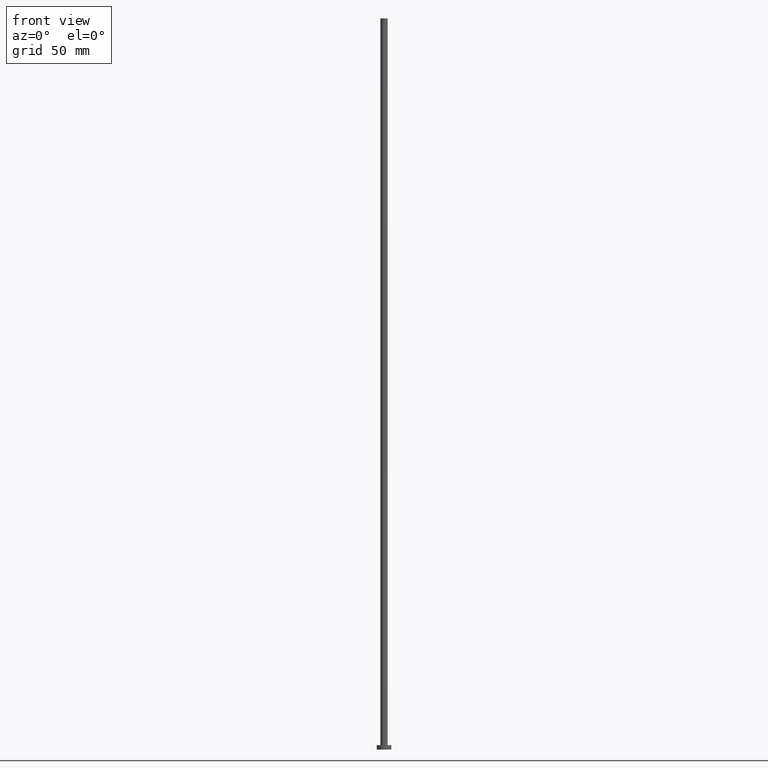
[diagram: clean part render]
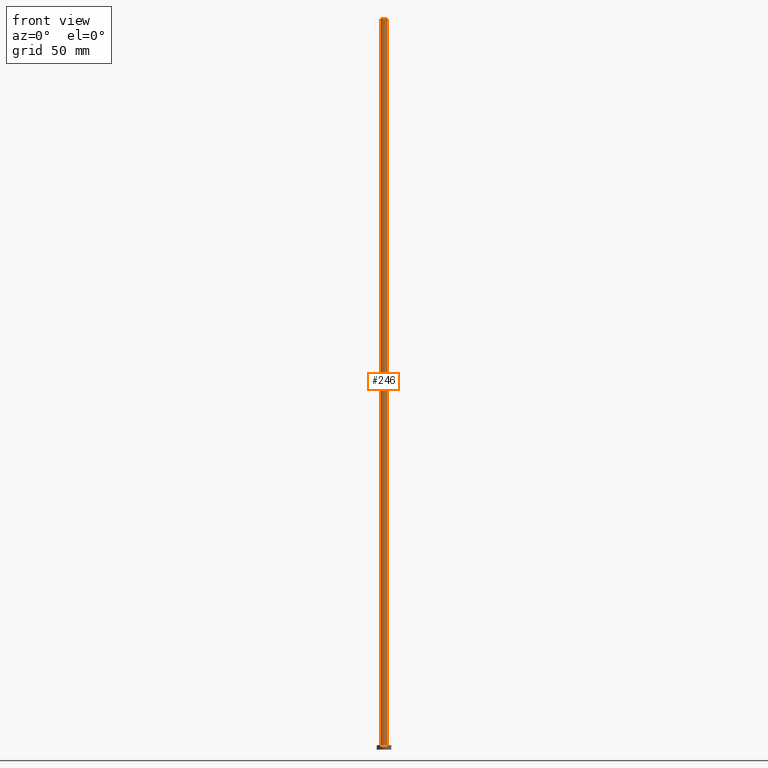
[diagram: same view with one face highlighted and labeled with its STEP entity id]
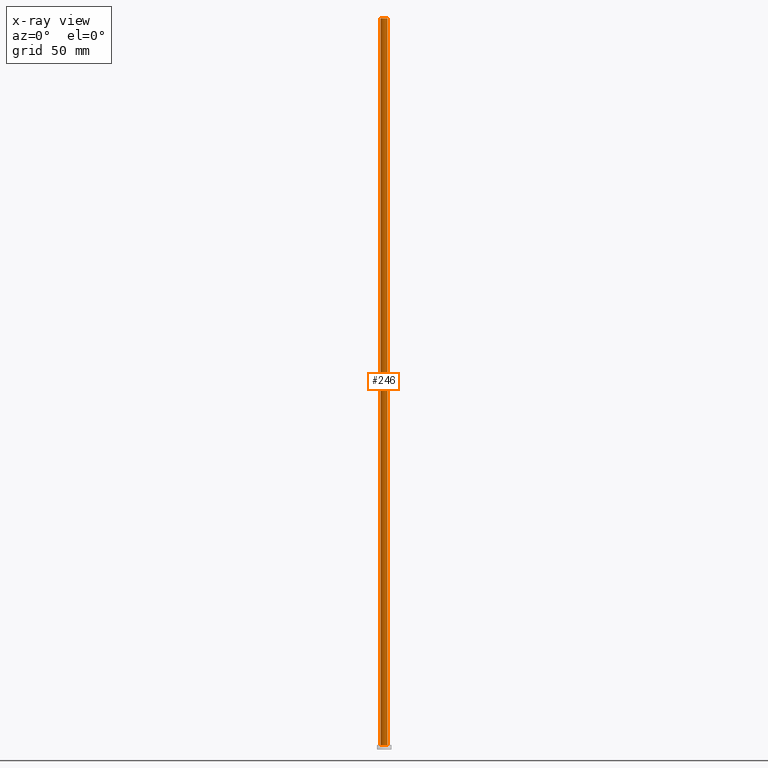
[diagram: x-ray of the same camera — body ghosted, the highlighted face saturated]
A machine part, front view. The second image highlights one B-rep face of the part: STEP entity #246.
The next image is the same camera in x-ray: the body ghosted, the highlighted face saturated — about 0% of this face is hidden behind the body in this view.
In plain terms, the highlighted cylindrical surface (edge-blend (fillet) strip) has radius 2.5 mm, axis along (-0, -0, -1).
Its self-contained STEP definition (entity closure, byte-faithful):
#3 = CARTESIAN_POINT ( 'NONE',  ( 2.500000000000000000, 3.061616997868382648E-16, 3.000000000000000000 ) ) ;
#7 = DIRECTION ( 'NONE',  ( -0.000000000000000000, -0.000000000000000000, -1.000000000000000000 ) ) ;
#11 = ORIENTED_EDGE ( 'NONE', *, *, #43, .T. ) ;
#21 = CARTESIAN_POINT ( 'NONE',  ( 0.000000000000000000, 0.000000000000000000, 3.000000000000000000 ) ) ;
#25 = CARTESIAN_POINT ( 'NONE',  ( -2.500000000000000000, 0.000000000000000000, 500.0000000000000000 ) ) ;
#38 = CARTESIAN_POINT ( 'NONE',  ( 0.000000000000000000, 0.000000000000000000, 500.0000000000000000 ) ) ;
#39 = EDGE_LOOP ( 'NONE', ( #207, #196, #229, #11 ) ) ;
#41 = CYLINDRICAL_SURFACE ( 'NONE', #133, 2.500000000000000000 ) ;
#42 = CARTESIAN_POINT ( 'NONE',  ( 0.000000000000000000, 0.000000000000000000, 500.0000000000000000 ) ) ;
#43 = EDGE_CURVE ( 'NONE', #245, #83, #88, .T. ) ;
#46 = CIRCLE ( 'NONE', #228, 2.500000000000000000 ) ;
#56 = DIRECTION ( 'NONE',  ( -0.000000000000000000, -0.000000000000000000, -1.000000000000000000 ) ) ;
#66 = VECTOR ( 'NONE', #7, 1000.000000000000000 ) ;
#67 = VERTEX_POINT ( 'NONE', #25 ) ;
#83 = VERTEX_POINT ( 'NONE', #3 ) ;
#88 = CIRCLE ( 'NONE', #105, 2.500000000000000000 ) ;
#98 = DIRECTION ( 'NONE',  ( 0.000000000000000000, 0.000000000000000000, 1.000000000000000000 ) ) ;
#102 = DIRECTION ( 'NONE',  ( 0.000000000000000000, 0.000000000000000000, 1.000000000000000000 ) ) ;
#105 = AXIS2_PLACEMENT_3D ( 'NONE', #21, #102, #177 ) ;
#117 = DIRECTION ( 'NONE',  ( 1.000000000000000000, 0.000000000000000000, 0.000000000000000000 ) ) ;
#119 = VECTOR ( 'NONE', #56, 1000.000000000000000 ) ;
#123 = DIRECTION ( 'NONE',  ( -0.000000000000000000, -0.000000000000000000, -1.000000000000000000 ) ) ;
#133 = AXIS2_PLACEMENT_3D ( 'NONE', #38, #123, #175 ) ;
#136 = CARTESIAN_POINT ( 'NONE',  ( 2.500000000000000000, 3.061616997868382648E-16, 500.0000000000000000 ) ) ;
#142 = EDGE_CURVE ( 'NONE', #143, #83, #243, .T. ) ;
#143 = VERTEX_POINT ( 'NONE', #200 ) ;
#162 = EDGE_CURVE ( 'NONE', #67, #245, #172, .T. ) ;
#172 = LINE ( 'NONE', #244, #119 ) ;
#175 = DIRECTION ( 'NONE',  ( -1.000000000000000000, 0.000000000000000000, 0.000000000000000000 ) ) ;
#177 = DIRECTION ( 'NONE',  ( 1.000000000000000000, 0.000000000000000000, 0.000000000000000000 ) ) ;
#196 = ORIENTED_EDGE ( 'NONE', *, *, #236, .F. ) ;
#200 = CARTESIAN_POINT ( 'NONE',  ( 2.500000000000000000, 3.061616997868382648E-16, 500.0000000000000000 ) ) ;
#207 = ORIENTED_EDGE ( 'NONE', *, *, #142, .F. ) ;
#224 = FACE_OUTER_BOUND ( 'NONE', #39, .T. ) ;
#227 = CARTESIAN_POINT ( 'NONE',  ( -2.500000000000000000, 0.000000000000000000, 3.000000000000000000 ) ) ;
#228 = AXIS2_PLACEMENT_3D ( 'NONE', #42, #98, #117 ) ;
#229 = ORIENTED_EDGE ( 'NONE', *, *, #162, .T. ) ;
#236 = EDGE_CURVE ( 'NONE', #67, #143, #46, .T. ) ;
#243 = LINE ( 'NONE', #136, #66 ) ;
#244 = CARTESIAN_POINT ( 'NONE',  ( -2.500000000000000000, 0.000000000000000000, 500.0000000000000000 ) ) ;
#245 = VERTEX_POINT ( 'NONE', #227 ) ;
#246 = ADVANCED_FACE ( 'NONE', ( #224 ), #41, .T. ) ;